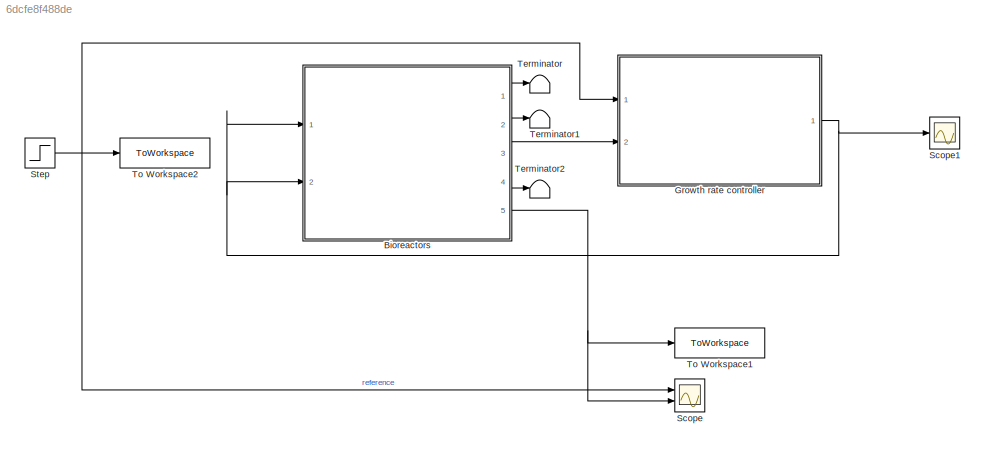
MODEL slx_6dcfe8f488de
KIND model
CONFIG AbsTol = 1e-6
CONFIG EnableMultiTasking = off
CONFIG FixedStep = h
CONFIG MaxStep = 1
CONFIG MinStep = auto
CONFIG RelTol = 1e-3
CONFIG SampleTimeConstraint = Unconstrained
CONFIG SolverName = VariableStepAuto
CONFIG StartTime = 0.0
CONFIG StopTime = 1000
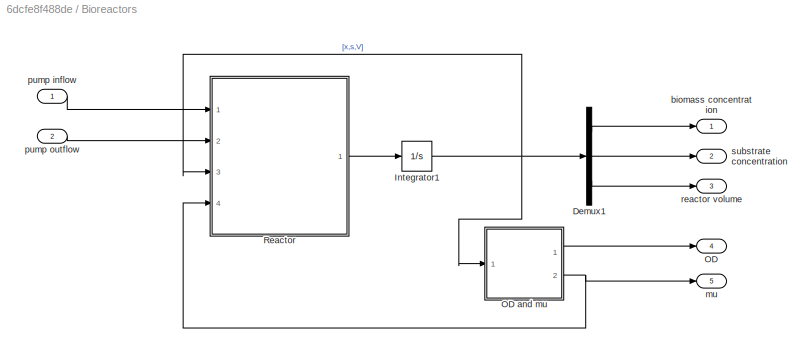
BLOCK [SubSystem] Bioreactors
  Ports = [2, 5]
  RequestExecContextInheritance = off
BLOCK [Demux] Bioreactors/Demux1
  Outputs = 3
  Ports = [1, 3]
BLOCK [Integrator] Bioreactors/Integrator1
  InitialCondition = [p.init_x; p.init_s; p.init_v];
  Ports = [1, 1]
BLOCK [Outport] Bioreactors/OD
  Port = 4
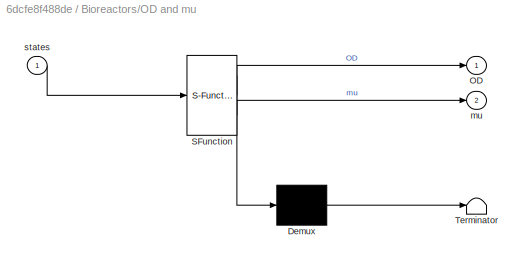
BLOCK [SubSystem] Bioreactors/OD and mu
  ErrorFcn = Stateflow.Translate.translate
  PermitHierarchicalResolution = ExplicitOnly
  Ports = [1, 2]
  RequestExecContextInheritance = off
  SFBlockType = MATLAB Function
  TreatAsAtomicUnit = on
BLOCK [Demux] Bioreactors/OD and mu/ Demux 
  Outputs = 1
  Ports = [1, 1]
BLOCK [S-Function] Bioreactors/OD and mu/ SFunction 
  EnableBusSupport = on
  FunctionName = sf_sfun
  Parameters = p
  PortCounts = [1 3]
  Ports = [1, 3]
  SFcnIsStateOwnerBlock = off
  SFunctionDeploymentMode = off
  Tag = Stateflow S-Function 9
BLOCK [Terminator] Bioreactors/OD and mu/ Terminator 
BLOCK [Outport] Bioreactors/OD and mu/OD
BLOCK [Outport] Bioreactors/OD and mu/mu
  Port = 2
BLOCK [Inport] Bioreactors/OD and mu/states
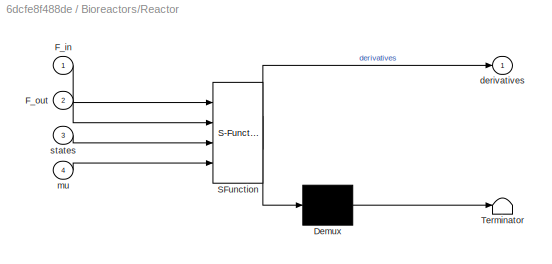
BLOCK [SubSystem] Bioreactors/Reactor
  ErrorFcn = Stateflow.Translate.translate
  PermitHierarchicalResolution = ExplicitOnly
  Ports = [4, 1]
  RequestExecContextInheritance = off
  SFBlockType = MATLAB Function
  TreatAsAtomicUnit = on
BLOCK [Demux] Bioreactors/Reactor/ Demux 
  Outputs = 1
  Ports = [1, 1]
BLOCK [S-Function] Bioreactors/Reactor/ SFunction 
  EnableBusSupport = on
  FunctionName = sf_sfun
  Parameters = p
  PortCounts = [4 2]
  Ports = [4, 2]
  SFcnIsStateOwnerBlock = off
  SFunctionDeploymentMode = off
  Tag = Stateflow S-Function 8
BLOCK [Terminator] Bioreactors/Reactor/ Terminator 
BLOCK [Inport] Bioreactors/Reactor/F_in
BLOCK [Inport] Bioreactors/Reactor/F_out
  Port = 2
BLOCK [Outport] Bioreactors/Reactor/derivatives
BLOCK [Inport] Bioreactors/Reactor/mu
  Port = 4
BLOCK [Inport] Bioreactors/Reactor/states
  Port = 3
BLOCK [Outport] Bioreactors/biomass concentration
BLOCK [Outport] Bioreactors/mu
  Port = 5
BLOCK [Inport] Bioreactors/pump inflow
BLOCK [Inport] Bioreactors/pump outflow
  Port = 2
BLOCK [Outport] Bioreactors/reactor volume
  Port = 3
BLOCK [Outport] Bioreactors/substrate concentration
  Port = 2
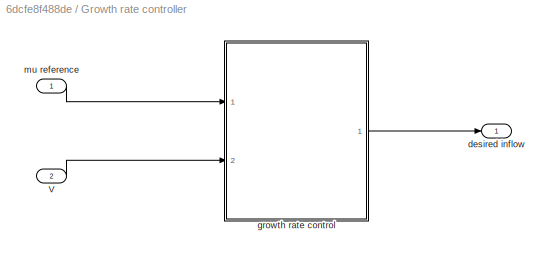
BLOCK [SubSystem] Growth rate controller
  Ports = [2, 1]
  RequestExecContextInheritance = off
BLOCK [Inport] Growth rate controller/V
  Port = 2
BLOCK [Outport] Growth rate controller/desired inflow
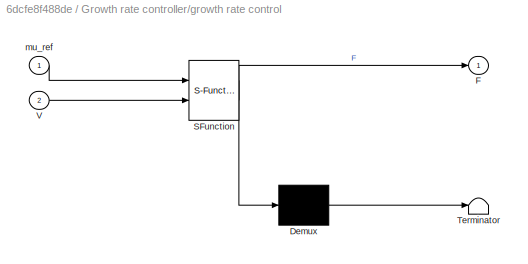
BLOCK [SubSystem] Growth rate controller/growth rate control
  ErrorFcn = Stateflow.Translate.translate
  PermitHierarchicalResolution = ExplicitOnly
  Ports = [2, 1]
  RequestExecContextInheritance = off
  SFBlockType = MATLAB Function
  TreatAsAtomicUnit = on
BLOCK [Demux] Growth rate controller/growth rate control/ Demux 
  Outputs = 1
  Ports = [1, 1]
BLOCK [S-Function] Growth rate controller/growth rate control/ SFunction 
  EnableBusSupport = on
  FunctionName = sf_sfun
  PortCounts = [2 2]
  Ports = [2, 2]
  SFcnIsStateOwnerBlock = off
  SFunctionDeploymentMode = off
  Tag = Stateflow S-Function 10
BLOCK [Terminator] Growth rate controller/growth rate control/ Terminator 
BLOCK [Outport] Growth rate controller/growth rate control/F
BLOCK [Inport] Growth rate controller/growth rate control/V
  Port = 2
BLOCK [Inport] Growth rate controller/growth rate control/mu_ref
BLOCK [Inport] Growth rate controller/mu reference
BLOCK [Scope] Scope
  Floating = off
  NumInputPorts = 2
  Ports = [2]
  ScopeSpecificationString = Simulink.scopes.TimeScopeBlockCfg('CurrentConfiguration', extmgr.ConfigurationSet(extmgr.Configuration('Core','General UI',true),extmgr.Configuration('Core','Source UI',true),extmgr.Configuration('Sources','WiredSimulink',true),extmgr.Configuration('Visuals','Time Domain',true,'SerializedDisplays',{struct('MinYLimReal','0.00442','MaxYLimReal','0.03126','YLabelReal','','MinYLimMag','0.00442','MaxYL...<+1680ch>
BLOCK [Scope] Scope1
  Floating = off
  NameLocation = left
  NumInputPorts = 1
  Ports = [1]
  ScopeSpecificationString = Simulink.scopes.TimeScopeBlockCfg('CurrentConfiguration', extmgr.ConfigurationSet(extmgr.Configuration('Core','General UI',true),extmgr.Configuration('Core','Source UI',true),extmgr.Configuration('Sources','WiredSimulink',true,'DataLoggingVariableName','ScopeData1'),extmgr.Configuration('Visuals','Time Domain',true,'SerializedDisplays',{struct('MinYLimReal','0.13125','MaxYLimReal','0.31875','YLabe...<+1518ch>
BLOCK [Step] Step
  After = p.growth_rate.final_val
  Before = p.growth_rate.init_val
  SampleTime = 0
  Time = p.growth_rate.step_time
BLOCK [Terminator] Terminator
BLOCK [Terminator] Terminator1
BLOCK [Terminator] Terminator2
BLOCK [ToWorkspace] To Workspace1
  FixptAsFi = on
  MaxDataPoints = inf
  Ports = [1]
  SampleTime = -1
  VariableName = actual_growth
BLOCK [ToWorkspace] To Workspace2
  FixptAsFi = on
  MaxDataPoints = inf
  Ports = [1]
  SampleTime = -1
  VariableName = growth_reference
LINE Bioreactors/Demux1:1 -> Bioreactors/biomass concentration:1
LINE Bioreactors/Demux1:2 -> Bioreactors/substrate concentration:1
LINE Bioreactors/Demux1:3 -> Bioreactors/reactor volume:1
NET Bioreactors/Integrator1:1 -> Bioreactors/Demux1:1, Bioreactors/OD and mu:1, Bioreactors/Reactor:3
LINE Bioreactors/OD and mu:1 -> Bioreactors/OD:1
NET Bioreactors/OD and mu:2 -> Bioreactors/Reactor:4, Bioreactors/mu:1
LINE Bioreactors/Reactor:1 -> Bioreactors/Integrator1:1
LINE Bioreactors/pump inflow:1 -> Bioreactors/Reactor:1
LINE Bioreactors/pump outflow:1 -> Bioreactors/Reactor:2
LINE Bioreactors:1 -> Terminator:1
LINE Bioreactors:2 -> Terminator1:1
LINE Bioreactors:3 -> Growth rate controller:2
LINE Bioreactors:4 -> Terminator2:1
NET Bioreactors:5 -> Scope:2, To Workspace1:1
LINE Growth rate controller/V:1 -> Growth rate controller/growth rate control:2
LINE Growth rate controller/growth rate control:1 -> Growth rate controller/desired inflow:1
LINE Growth rate controller/mu reference:1 -> Growth rate controller/growth rate control:1
NET Growth rate controller:1 -> Bioreactors:1, Bioreactors:2, Scope1:1
NET Step:1 -> Growth rate controller:1, Scope:1, To Workspace2:1
note: NET lines group one-source signal fan-out (src -> all destinations, sorted); 1:1 wires keep LINE
CHART Bioreactors/Reactor states=1 transitions=1
  STATE_LABEL 'eML_blk_kernel()'
  STATE_LABEL 'SCRIPT:\nfunction derivatives   = fcn(F_in,F_out,states, mu, p)\n\nx=states(1:p.num_reac);\ns=states(p.num_reac+(1:p.num_reac));\nV=states(2*p.num_reac+(1:p.num_reac));\n\nD = F_in./V;\n\n%dx    (Concentration of biomass in the biorreactor)\ndx= mu.*x - D.*x;\n\n%ds    (Concentration of substrate in the biorreactor)\nds= -p.y.*mu.*x + D.*(p.s_f - s);\n\n%dV    (Volume of liquid inside the biorreactor)\ndV= F_in -...<+38ch>'
CHART Bioreactors/OD and mu states=1 transitions=1
  STATE_LABEL 'eML_blk_kernel()'
  STATE_LABEL 'SCRIPT:\nfunction [OD,mu] = fcn(states, p)\n\nx=states(1:p.num_reac);\ns=states(p.num_reac+(1:p.num_reac));\nV=states(2*p.num_reac+(1:p.num_reac));\n\nOD=x./p.m_p./p.nOD;\nmu = p.mu_max.*s./(p.K_s+s);\n'
CHART Growth rate controller/growth rate control states=1 transitions=1
  STATE_LABEL 'eML_blk_kernel()'
  STATE_LABEL 'SCRIPT:\nfunction F = fcn(mu_ref,V)\n\nF = mu_ref.*V;\n'
CHART  states=0 transitions=0
CHART  states=0 transitions=0
CHART  states=0 transitions=0
